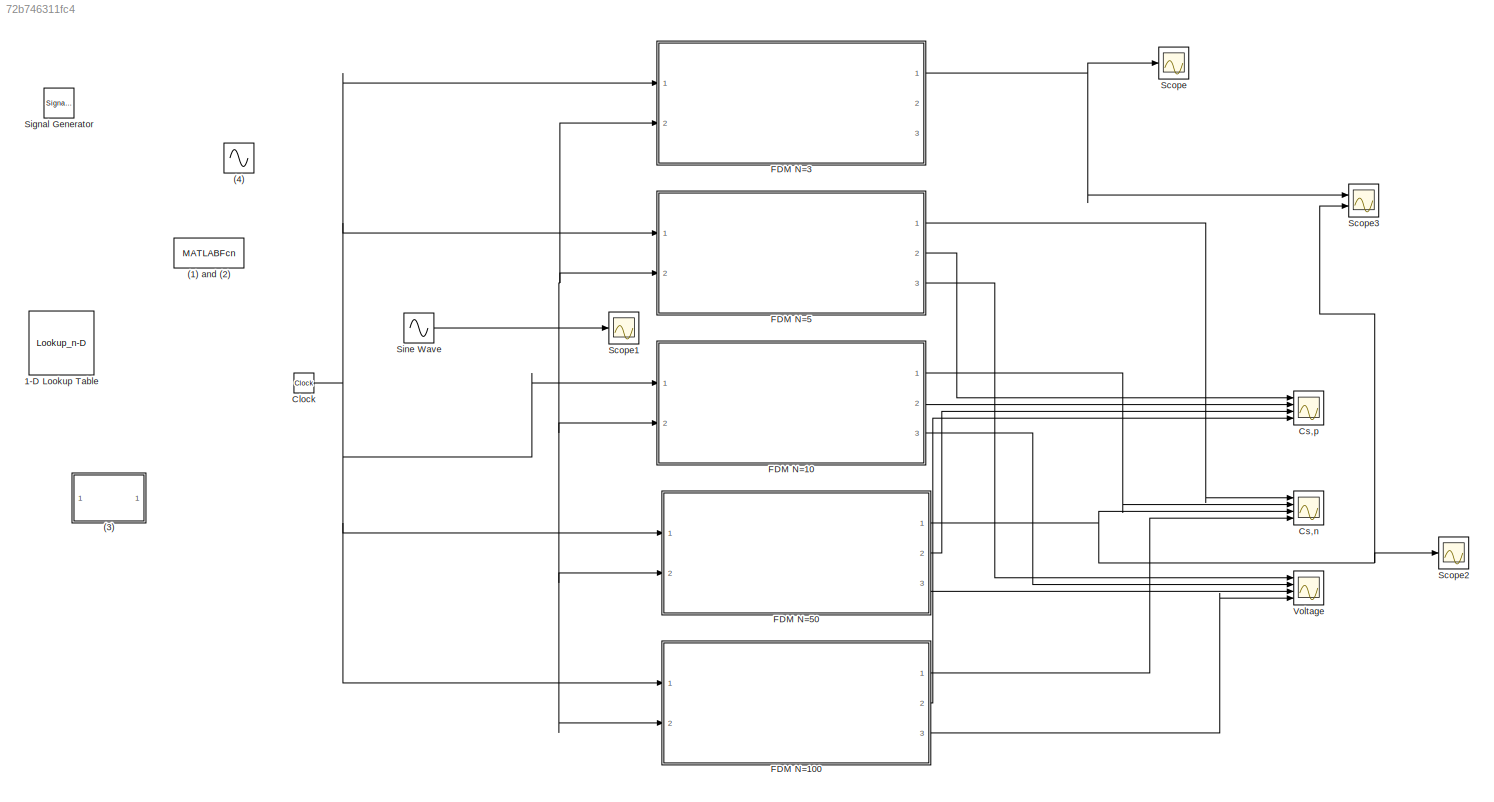
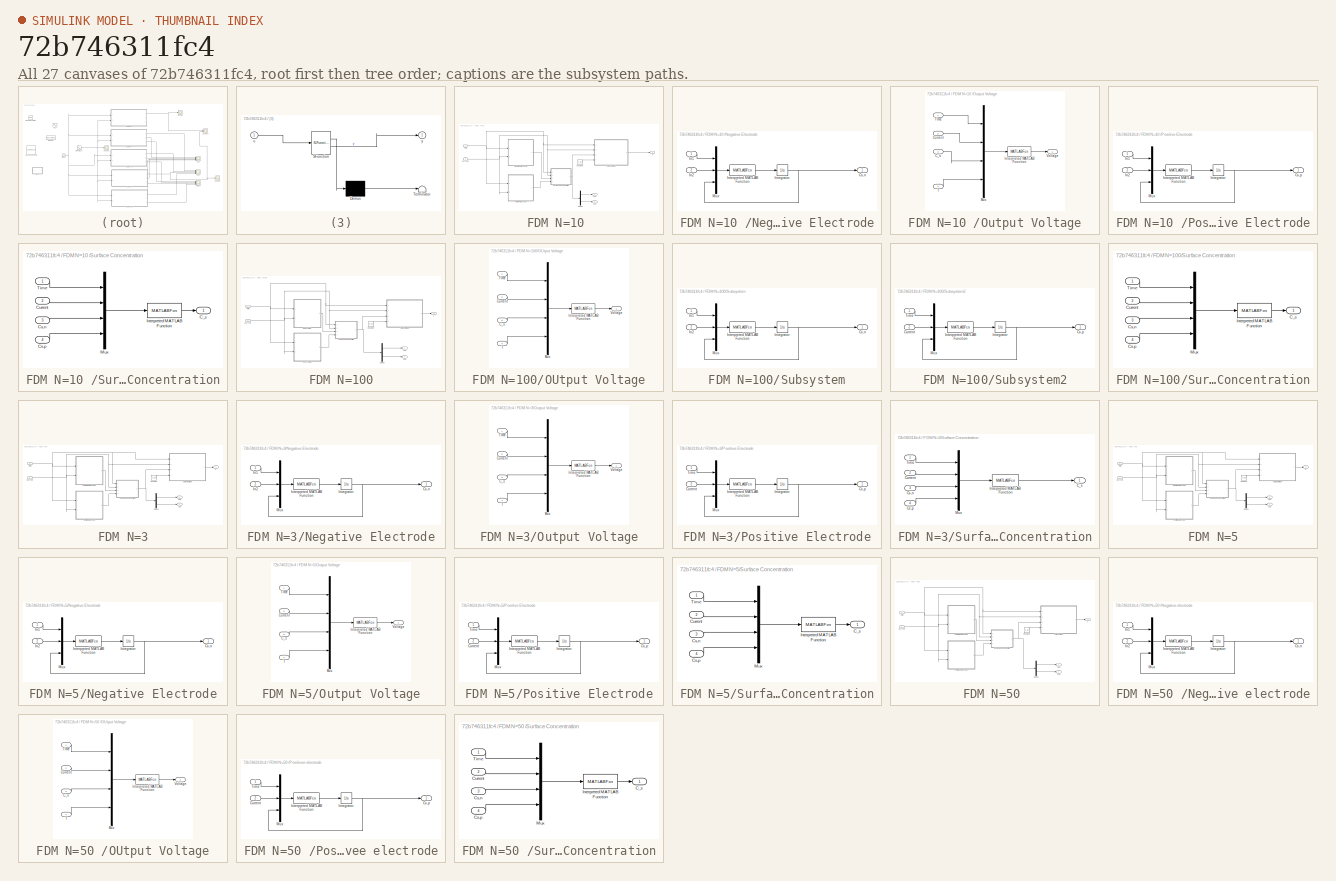
[diagram: thumbnail index - all 27 canvases of the model, root first then tree order]
MODEL slx_72b746311fc4
KIND model
CONFIG AbsTol = auto
CONFIG EnableMultiTasking = off
CONFIG FixedStep = auto
CONFIG MaxStep = 0.1
CONFIG MinStep = auto
CONFIG RelTol = 1e-3
CONFIG SampleTimeConstraint = Unconstrained
CONFIG SolverName = VariableStepAuto
CONFIG StartTime = 0.0
CONFIG StopTime = t_final
BLOCK [MATLABFcn] (1) and (2)
  MATLABFcn = input_c
  Ports = [1, 1]
BLOCK [SubSystem] (3)
  ErrorFcn = Stateflow.Translate.translate
  PermitHierarchicalResolution = ExplicitOnly
  Ports = [1, 1]
  RequestExecContextInheritance = off
  SFBlockType = MATLAB Function
  TreatAsAtomicUnit = on
BLOCK [Demux] (3)/ Demux 
  Outputs = 1
  Ports = [1, 1]
BLOCK [S-Function] (3)/ SFunction 
  EnableBusSupport = on
  FunctionName = sf_sfun
  PortCounts = [1 2]
  Ports = [1, 2]
  SFcnIsStateOwnerBlock = off
  SFunctionDeploymentMode = off
  Tag = Stateflow S-Function 2
BLOCK [Terminator] (3)/ Terminator 
BLOCK [Inport] (3)/u
BLOCK [Outport] (3)/y
BLOCK [Sin] (4)
  Amplitude = 10
  Frequency = 0.005
  Phase = 3*pi/2
  Ports = [0, 1]
  SampleTime = 0
BLOCK [Lookup_n-D] 1-D Lookup Table
  BreakpointsForDimension1 = t
  InputPortMap = u0
  InternalRulePriority = Speed
  NumberOfTableDimensions = 1
  Ports = [1, 1]
  RndMeth = Simplest
  Table = u
BLOCK [Clock] Clock
BLOCK [Scope] Cs,n
  Commented = on
  Floating = off
  NumInputPorts = 4
  Ports = [4]
  ScopeSpecificationString = Simulink.scopes.TimeScopeBlockCfg('CurrentConfiguration', extmgr.ConfigurationSet(extmgr.Configuration('Core','General UI',true),extmgr.Configuration('Core','Source UI',true),extmgr.Configuration('Sources','WiredSimulink',true,'DataLoggingVariableName','csn','DataLogging',true,'DataLoggingSaveFormat','StructureWithTime'),extmgr.Configuration('Visuals','Time Domain',true,'SerializedDisplays',{struc...<+1953ch>
BLOCK [Scope] Cs,p
  Commented = on
  Floating = off
  NumInputPorts = 4
  Ports = [4]
  ScopeSpecificationString = Simulink.scopes.TimeScopeBlockCfg('CurrentConfiguration', extmgr.ConfigurationSet(extmgr.Configuration('Core','General UI',true),extmgr.Configuration('Core','Source UI',true),extmgr.Configuration('Sources','WiredSimulink',true,'DataLogging',true,'DataLoggingVariableName','csp','DataLoggingSaveFormat','StructureWithTime'),extmgr.Configuration('Visuals','Time Domain',true,'SerializedDisplays',{struc...<+1981ch>
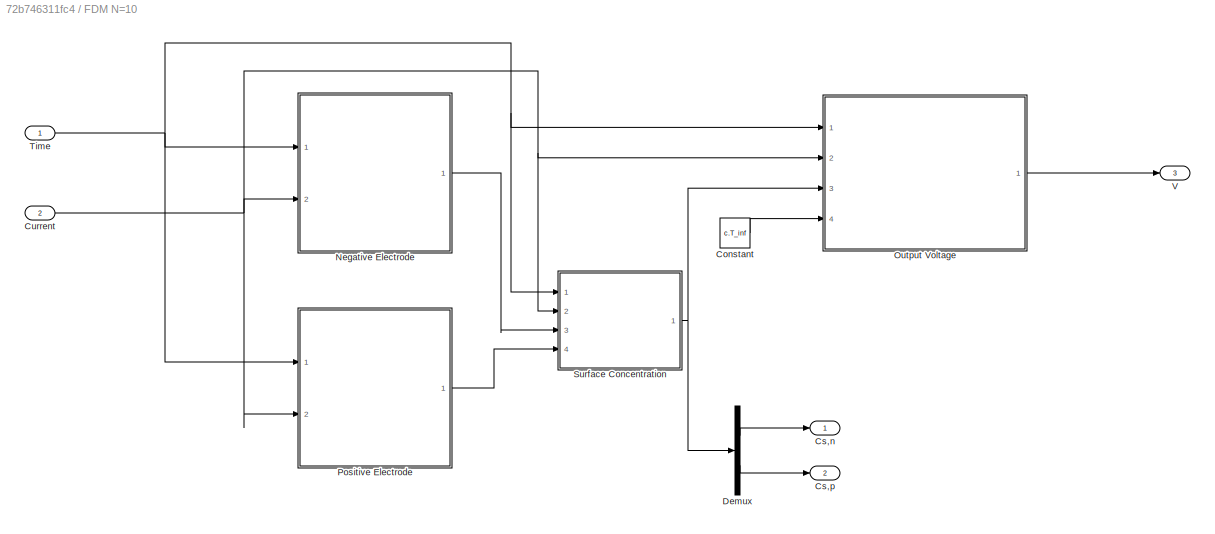
BLOCK [SubSystem] FDM N=10 
  Commented = on
  Ports = [2, 3]
  RequestExecContextInheritance = off
BLOCK [Constant] FDM N=10 /Constant
  Value = c.T_inf
BLOCK [Outport] FDM N=10 /Cs,n
BLOCK [Outport] FDM N=10 /Cs,p
  Port = 2
BLOCK [Inport] FDM N=10 /Current
  Port = 2
BLOCK [Demux] FDM N=10 /Demux
  Outputs = 2
  Ports = [1, 2]
BLOCK [SubSystem] FDM N=10 /Negative Electrode
  Ports = [2, 1]
  RequestExecContextInheritance = off
BLOCK [Outport] FDM N=10 /Negative Electrode/Cs,n
BLOCK [Inport] FDM N=10 /Negative Electrode/In1
BLOCK [Inport] FDM N=10 /Negative Electrode/In2
  Port = 2
BLOCK [Integrator] FDM N=10 /Negative Electrode/Integrator
  InitialCondition = initial_10_n
  Ports = [1, 1]
BLOCK [MATLABFcn] FDM N=10 /Negative Electrode/Interpreted MATLAB Function
  MATLABFcn = state_eqns_fdm_10
  Ports = [1, 1]
BLOCK [Mux] FDM N=10 /Negative Electrode/Mux
  DisplayOption = bar
  Inputs = 3
  Ports = [3, 1]
BLOCK [SubSystem] FDM N=10 /Output Voltage
  Ports = [4, 1]
  RequestExecContextInheritance = off
BLOCK [Inport] FDM N=10 /Output Voltage/C_s
  Port = 3
BLOCK [Inport] FDM N=10 /Output Voltage/Current
  Port = 2
BLOCK [MATLABFcn] FDM N=10 /Output Voltage/Interpreted MATLAB Function
  MATLABFcn = output_V
  Ports = [1, 1]
BLOCK [Mux] FDM N=10 /Output Voltage/Mux
  DisplayOption = bar
  Ports = [4, 1]
BLOCK [Inport] FDM N=10 /Output Voltage/T
  Port = 4
BLOCK [Inport] FDM N=10 /Output Voltage/TIme
BLOCK [Outport] FDM N=10 /Output Voltage/Voltage
BLOCK [SubSystem] FDM N=10 /Positive Electrode
  Ports = [2, 1]
  RequestExecContextInheritance = off
BLOCK [Outport] FDM N=10 /Positive Electrode/Cs,p
BLOCK [Inport] FDM N=10 /Positive Electrode/In1
BLOCK [Inport] FDM N=10 /Positive Electrode/In2
  Port = 2
BLOCK [Integrator] FDM N=10 /Positive Electrode/Integrator
  InitialCondition = initial_10_p
  Ports = [1, 1]
BLOCK [MATLABFcn] FDM N=10 /Positive Electrode/Interpreted MATLAB Function
  MATLABFcn = state_eqns_fdm_10p
  Ports = [1, 1]
BLOCK [Mux] FDM N=10 /Positive Electrode/Mux
  DisplayOption = bar
  Inputs = 3
  Ports = [3, 1]
BLOCK [SubSystem] FDM N=10 /Surface Concentration
  Ports = [4, 1]
  RequestExecContextInheritance = off
BLOCK [Outport] FDM N=10 /Surface Concentration/C_s
BLOCK [Inport] FDM N=10 /Surface Concentration/Cs,n
  Port = 3
BLOCK [Inport] FDM N=10 /Surface Concentration/Cs,p
  Port = 4
BLOCK [Inport] FDM N=10 /Surface Concentration/Current
  Port = 2
BLOCK [MATLABFcn] FDM N=10 /Surface Concentration/Interpreted MATLAB Function
  MATLABFcn = output_C_10
  Ports = [1, 1]
BLOCK [Mux] FDM N=10 /Surface Concentration/Mux
  DisplayOption = bar
  Ports = [4, 1]
BLOCK [Inport] FDM N=10 /Surface Concentration/Time
BLOCK [Inport] FDM N=10 /Time
BLOCK [Outport] FDM N=10 /V
  Port = 3
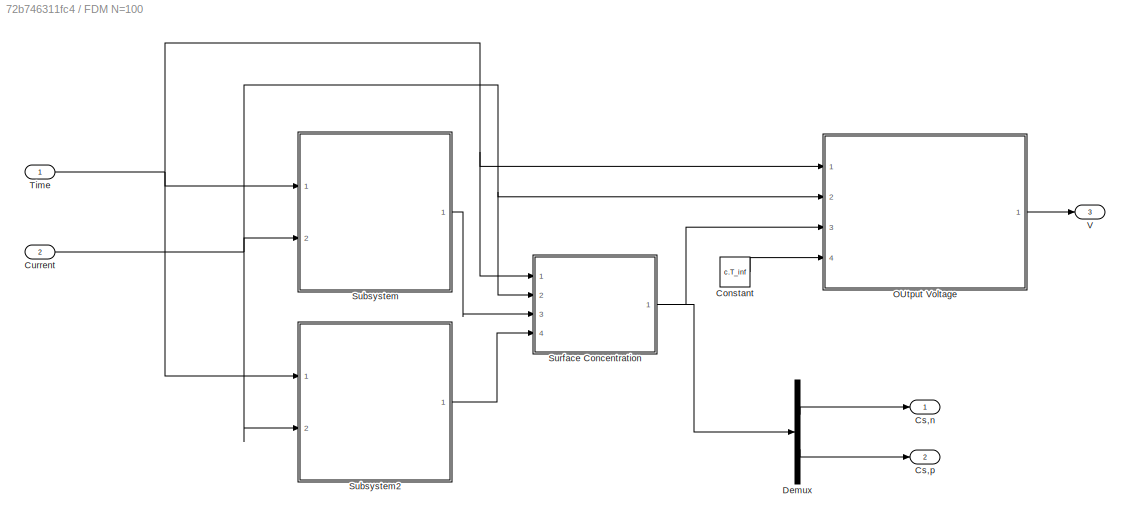
BLOCK [SubSystem] FDM N=100
  Commented = on
  Ports = [2, 3]
  RequestExecContextInheritance = off
BLOCK [Constant] FDM N=100/Constant
  Value = c.T_inf
BLOCK [Outport] FDM N=100/Cs,n
BLOCK [Outport] FDM N=100/Cs,p
  Port = 2
BLOCK [Inport] FDM N=100/Current
  Port = 2
BLOCK [Demux] FDM N=100/Demux
  Outputs = 2
  Ports = [1, 2]
BLOCK [SubSystem] FDM N=100/OUtput Voltage
  Ports = [4, 1]
  RequestExecContextInheritance = off
BLOCK [Inport] FDM N=100/OUtput Voltage/C_s
  Port = 3
BLOCK [Inport] FDM N=100/OUtput Voltage/Current
  Port = 2
BLOCK [MATLABFcn] FDM N=100/OUtput Voltage/Interpreted MATLAB Function
  MATLABFcn = output_V
  Ports = [1, 1]
BLOCK [Mux] FDM N=100/OUtput Voltage/Mux
  DisplayOption = bar
  Ports = [4, 1]
BLOCK [Inport] FDM N=100/OUtput Voltage/T
  Port = 4
BLOCK [Inport] FDM N=100/OUtput Voltage/TIme
BLOCK [Outport] FDM N=100/OUtput Voltage/Voltage
BLOCK [SubSystem] FDM N=100/Subsystem
  Ports = [2, 1]
  RequestExecContextInheritance = off
BLOCK [Outport] FDM N=100/Subsystem/Cs,n
BLOCK [Inport] FDM N=100/Subsystem/In1
BLOCK [Inport] FDM N=100/Subsystem/In2
  Port = 2
BLOCK [Integrator] FDM N=100/Subsystem/Integrator
  InitialCondition = initial_100_n
  Ports = [1, 1]
BLOCK [MATLABFcn] FDM N=100/Subsystem/Interpreted MATLAB Function
  MATLABFcn = state_eqns_fdm_100
  Ports = [1, 1]
BLOCK [Mux] FDM N=100/Subsystem/Mux
  DisplayOption = bar
  Inputs = 3
  Ports = [3, 1]
BLOCK [SubSystem] FDM N=100/Subsystem2
  Ports = [2, 1]
  RequestExecContextInheritance = off
BLOCK [Outport] FDM N=100/Subsystem2/Cs,p
BLOCK [Inport] FDM N=100/Subsystem2/Current
  Port = 2
BLOCK [Integrator] FDM N=100/Subsystem2/Integrator
  InitialCondition = initial_100_p
  Ports = [1, 1]
BLOCK [MATLABFcn] FDM N=100/Subsystem2/Interpreted MATLAB Function
  MATLABFcn = state_eqns_fdm_100p
  Ports = [1, 1]
BLOCK [Mux] FDM N=100/Subsystem2/Mux
  DisplayOption = bar
  Inputs = 3
  Ports = [3, 1]
BLOCK [Inport] FDM N=100/Subsystem2/Time
BLOCK [SubSystem] FDM N=100/Surface Concentration
  Ports = [4, 1]
  RequestExecContextInheritance = off
BLOCK [Outport] FDM N=100/Surface Concentration/C_s
BLOCK [Inport] FDM N=100/Surface Concentration/Cs,n
  Port = 3
BLOCK [Inport] FDM N=100/Surface Concentration/Cs,p
  Port = 4
BLOCK [Inport] FDM N=100/Surface Concentration/Current
  Port = 2
BLOCK [MATLABFcn] FDM N=100/Surface Concentration/Interpreted MATLAB Function
  MATLABFcn = output_C_100
  Ports = [1, 1]
BLOCK [Mux] FDM N=100/Surface Concentration/Mux
  DisplayOption = bar
  Ports = [4, 1]
BLOCK [Inport] FDM N=100/Surface Concentration/Time
BLOCK [Inport] FDM N=100/Time
BLOCK [Outport] FDM N=100/V
  Port = 3
BLOCK [SubSystem] FDM N=3
  Commented = on
  Ports = [2, 3]
  RequestExecContextInheritance = off
BLOCK [Constant] FDM N=3/Constant
  Commented = on
  Value = c.T_inf
BLOCK [Outport] FDM N=3/Cs,n
BLOCK [Outport] FDM N=3/Cs,p
  Port = 2
BLOCK [Inport] FDM N=3/Current
  Port = 2
BLOCK [Demux] FDM N=3/Demux
  Outputs = 2
  Ports = [1, 2]
BLOCK [SubSystem] FDM N=3/Negative Electrode
  Ports = [2, 1]
  RequestExecContextInheritance = off
BLOCK [Outport] FDM N=3/Negative Electrode/Cs,n
BLOCK [Inport] FDM N=3/Negative Electrode/In1
BLOCK [Inport] FDM N=3/Negative Electrode/In2
  Port = 2
BLOCK [Integrator] FDM N=3/Negative Electrode/Integrator
  InitialCondition = initial_3_n
  Ports = [1, 1]
BLOCK [MATLABFcn] FDM N=3/Negative Electrode/Interpreted MATLAB Function
  MATLABFcn = state_eqns_fdm_3
  Ports = [1, 1]
BLOCK [Mux] FDM N=3/Negative Electrode/Mux
  DisplayOption = bar
  Inputs = 3
  Ports = [3, 1]
BLOCK [SubSystem] FDM N=3/Output Voltage
  Ports = [4, 1]
  RequestExecContextInheritance = off
BLOCK [Inport] FDM N=3/Output Voltage/C_s
  Port = 3
BLOCK [Inport] FDM N=3/Output Voltage/Current
  Port = 2
BLOCK [MATLABFcn] FDM N=3/Output Voltage/Interpreted MATLAB Function
  MATLABFcn = output_V
  Ports = [1, 1]
BLOCK [Mux] FDM N=3/Output Voltage/Mux
  DisplayOption = bar
  Ports = [4, 1]
BLOCK [Inport] FDM N=3/Output Voltage/T
  Port = 4
BLOCK [Inport] FDM N=3/Output Voltage/TIme
BLOCK [Outport] FDM N=3/Output Voltage/Voltage
BLOCK [SubSystem] FDM N=3/Positive Electrode
  Ports = [2, 1]
  RequestExecContextInheritance = off
BLOCK [Outport] FDM N=3/Positive Electrode/Cs,p
BLOCK [Inport] FDM N=3/Positive Electrode/Current
  Port = 2
BLOCK [Integrator] FDM N=3/Positive Electrode/Integrator
  InitialCondition = initial_3_p
  Ports = [1, 1]
BLOCK [MATLABFcn] FDM N=3/Positive Electrode/Interpreted MATLAB Function
  MATLABFcn = state_eqns_fdm_3p
  Ports = [1, 1]
BLOCK [Mux] FDM N=3/Positive Electrode/Mux
  DisplayOption = bar
  Inputs = 3
  Ports = [3, 1]
BLOCK [Inport] FDM N=3/Positive Electrode/Time
BLOCK [SubSystem] FDM N=3/Surface Concentration
  Ports = [4, 1]
  RequestExecContextInheritance = off
BLOCK [Outport] FDM N=3/Surface Concentration/C_s
BLOCK [Inport] FDM N=3/Surface Concentration/Cs,n
  Port = 3
BLOCK [Inport] FDM N=3/Surface Concentration/Cs,p
  Port = 4
BLOCK [Inport] FDM N=3/Surface Concentration/Current
  Port = 2
BLOCK [MATLABFcn] FDM N=3/Surface Concentration/Interpreted MATLAB Function
  MATLABFcn = output_C_3
  Ports = [1, 1]
BLOCK [Mux] FDM N=3/Surface Concentration/Mux
  DisplayOption = bar
  Ports = [4, 1]
BLOCK [Inport] FDM N=3/Surface Concentration/Time
BLOCK [Inport] FDM N=3/Time
BLOCK [Outport] FDM N=3/V
  Port = 3
BLOCK [SubSystem] FDM N=5
  Commented = on
  Ports = [2, 3]
  RequestExecContextInheritance = off
BLOCK [Constant] FDM N=5/Constant
  Value = c.T_inf
BLOCK [Outport] FDM N=5/Cs,n
BLOCK [Outport] FDM N=5/Cs,p
  Port = 2
BLOCK [Inport] FDM N=5/Current
  Port = 2
BLOCK [Demux] FDM N=5/Demux
  Outputs = 2
  Ports = [1, 2]
BLOCK [SubSystem] FDM N=5/Negative Electrode
  Ports = [2, 1]
  RequestExecContextInheritance = off
BLOCK [Outport] FDM N=5/Negative Electrode/Cs,n
BLOCK [Inport] FDM N=5/Negative Electrode/In1
BLOCK [Inport] FDM N=5/Negative Electrode/In2
  Port = 2
BLOCK [Integrator] FDM N=5/Negative Electrode/Integrator
  InitialCondition = initial_5_n
  Ports = [1, 1]
BLOCK [MATLABFcn] FDM N=5/Negative Electrode/Interpreted MATLAB Function
  MATLABFcn = state_eqns_fdm_5
  Ports = [1, 1]
BLOCK [Mux] FDM N=5/Negative Electrode/Mux
  DisplayOption = bar
  Inputs = 3
  Ports = [3, 1]
BLOCK [SubSystem] FDM N=5/Output Voltage
  Ports = [4, 1]
  RequestExecContextInheritance = off
BLOCK [Inport] FDM N=5/Output Voltage/C_s
  Port = 3
BLOCK [Inport] FDM N=5/Output Voltage/Current
  Port = 2
BLOCK [MATLABFcn] FDM N=5/Output Voltage/Interpreted MATLAB Function
  MATLABFcn = output_V
  Ports = [1, 1]
BLOCK [Mux] FDM N=5/Output Voltage/Mux
  DisplayOption = bar
  Ports = [4, 1]
BLOCK [Inport] FDM N=5/Output Voltage/T
  Port = 4
BLOCK [Inport] FDM N=5/Output Voltage/TIme
BLOCK [Outport] FDM N=5/Output Voltage/Voltage
BLOCK [SubSystem] FDM N=5/Positive Electrode
  Ports = [2, 1]
  RequestExecContextInheritance = off
BLOCK [Outport] FDM N=5/Positive Electrode/Cs,p
BLOCK [Inport] FDM N=5/Positive Electrode/Current
  Port = 2
BLOCK [Integrator] FDM N=5/Positive Electrode/Integrator
  InitialCondition = initial_5_p
  Ports = [1, 1]
BLOCK [MATLABFcn] FDM N=5/Positive Electrode/Interpreted MATLAB Function
  MATLABFcn = state_eqns_fdm_5p
  Ports = [1, 1]
BLOCK [Mux] FDM N=5/Positive Electrode/Mux
  DisplayOption = bar
  Inputs = 3
  Ports = [3, 1]
BLOCK [Inport] FDM N=5/Positive Electrode/Time
BLOCK [SubSystem] FDM N=5/Surface Concentration
  Ports = [4, 1]
  RequestExecContextInheritance = off
BLOCK [Outport] FDM N=5/Surface Concentration/C_s
BLOCK [Inport] FDM N=5/Surface Concentration/Cs,n
  Port = 3
BLOCK [Inport] FDM N=5/Surface Concentration/Cs,p
  Port = 4
BLOCK [Inport] FDM N=5/Surface Concentration/Current
  Port = 2
BLOCK [MATLABFcn] FDM N=5/Surface Concentration/Interpreted MATLAB Function
  MATLABFcn = output_C_5
  Ports = [1, 1]
BLOCK [Mux] FDM N=5/Surface Concentration/Mux
  DisplayOption = bar
  Ports = [4, 1]
BLOCK [Inport] FDM N=5/Surface Concentration/Time
BLOCK [Inport] FDM N=5/Time
BLOCK [Outport] FDM N=5/V
  Port = 3
BLOCK [SubSystem] FDM N=50 
  Ports = [2, 3]
  RequestExecContextInheritance = off
BLOCK [Constant] FDM N=50 /Constant
  Value = c.T_inf
BLOCK [Outport] FDM N=50 /Cs,n
BLOCK [Outport] FDM N=50 /Cs,p
  Port = 2
BLOCK [Inport] FDM N=50 /Current
  Port = 2
BLOCK [Demux] FDM N=50 /Demux
  Outputs = 2
  Ports = [1, 2]
BLOCK [SubSystem] FDM N=50 /Negative electrode
  Ports = [2, 1]
  RequestExecContextInheritance = off
BLOCK [Outport] FDM N=50 /Negative electrode/Cs,n
BLOCK [Inport] FDM N=50 /Negative electrode/In1
BLOCK [Inport] FDM N=50 /Negative electrode/In2
  Port = 2
BLOCK [Integrator] FDM N=50 /Negative electrode/Integrator
  InitialCondition = initial_50_n
  Ports = [1, 1]
BLOCK [MATLABFcn] FDM N=50 /Negative electrode/Interpreted MATLAB Function
  MATLABFcn = state_eqns_fdm_50
  Ports = [1, 1]
BLOCK [Mux] FDM N=50 /Negative electrode/Mux
  DisplayOption = bar
  Inputs = 3
  Ports = [3, 1]
BLOCK [SubSystem] FDM N=50 /OUtput Voltage
  Ports = [4, 1]
  RequestExecContextInheritance = off
BLOCK [Inport] FDM N=50 /OUtput Voltage/C_s
  Port = 3
BLOCK [Inport] FDM N=50 /OUtput Voltage/Current
  Port = 2
BLOCK [MATLABFcn] FDM N=50 /OUtput Voltage/Interpreted MATLAB Function
  MATLABFcn = output_V
  Ports = [1, 1]
BLOCK [Mux] FDM N=50 /OUtput Voltage/Mux
  DisplayOption = bar
  Ports = [4, 1]
BLOCK [Inport] FDM N=50 /OUtput Voltage/T
  Port = 4
BLOCK [Inport] FDM N=50 /OUtput Voltage/TIme
BLOCK [Outport] FDM N=50 /OUtput Voltage/Voltage
BLOCK [SubSystem] FDM N=50 /Positivee electrode
  Ports = [2, 1]
  RequestExecContextInheritance = off
BLOCK [Outport] FDM N=50 /Positivee electrode/Cs,p
BLOCK [Inport] FDM N=50 /Positivee electrode/Current
  Port = 2
BLOCK [Integrator] FDM N=50 /Positivee electrode/Integrator
  InitialCondition = initial_50_p
  Ports = [1, 1]
BLOCK [MATLABFcn] FDM N=50 /Positivee electrode/Interpreted MATLAB Function
  MATLABFcn = state_eqns_fdm_50p
  Ports = [1, 1]
BLOCK [Mux] FDM N=50 /Positivee electrode/Mux
  DisplayOption = bar
  Inputs = 3
  Ports = [3, 1]
BLOCK [Inport] FDM N=50 /Positivee electrode/Time
BLOCK [SubSystem] FDM N=50 /Surface Concentration
  Ports = [4, 1]
  RequestExecContextInheritance = off
BLOCK [Outport] FDM N=50 /Surface Concentration/C_s
BLOCK [Inport] FDM N=50 /Surface Concentration/Cs,n
  Port = 3
BLOCK [Inport] FDM N=50 /Surface Concentration/Cs,p
  Port = 4
BLOCK [Inport] FDM N=50 /Surface Concentration/Current
  Port = 2
BLOCK [MATLABFcn] FDM N=50 /Surface Concentration/Interpreted MATLAB Function
  MATLABFcn = output_C_50
  Ports = [1, 1]
BLOCK [Mux] FDM N=50 /Surface Concentration/Mux
  DisplayOption = bar
  Ports = [4, 1]
BLOCK [Inport] FDM N=50 /Surface Concentration/Time
BLOCK [Inport] FDM N=50 /Time
BLOCK [Outport] FDM N=50 /V
  Port = 3
BLOCK [Scope] Scope
  Commented = on
  Floating = off
  NumInputPorts = 1
  Ports = [1]
  ScopeSpecificationString = Simulink.scopes.TimeScopeBlockCfg('CurrentConfiguration', extmgr.ConfigurationSet(extmgr.Configuration('Core','General UI',true),extmgr.Configuration('Core','Source UI',true),extmgr.Configuration('Sources','WiredSimulink',true,'DataLoggingVariableName','csn','DataLogging',true,'DataLoggingSaveFormat','StructureWithTime'),extmgr.Configuration('Visuals','Time Domain',true,'SerializedDisplays',{struc...<+1570ch>
BLOCK [Scope] Scope1
  Floating = off
  NumInputPorts = 1
  Ports = [1]
  ScopeSpecificationString = Simulink.scopes.TimeScopeBlockCfg('CurrentConfiguration', extmgr.ConfigurationSet(extmgr.Configuration('Core','General UI',true),extmgr.Configuration('Core','Source UI',true),extmgr.Configuration('Sources','WiredSimulink',true,'DataLoggingVariableName','I','DataLogging',true,'DataLoggingSaveFormat','StructureWithTime'),extmgr.Configuration('Visuals','Time Domain',true,'SerializedDisplays',{struct(...<+1476ch>
BLOCK [Scope] Scope2
  Floating = off
  NumInputPorts = 1
  Ports = [1]
  ScopeSpecificationString = Simulink.scopes.TimeScopeBlockCfg('CurrentConfiguration', extmgr.ConfigurationSet(extmgr.Configuration('Core','General UI',true),extmgr.Configuration('Core','Source UI',true),extmgr.Configuration('Sources','WiredSimulink',true,'DataLoggingVariableName','csn','DataLogging',true,'DataLoggingSaveFormat','StructureWithTime'),extmgr.Configuration('Visuals','Time Domain',true,'SerializedDisplays',{struc...<+1523ch>
BLOCK [Scope] Scope3
  Floating = off
  NumInputPorts = 2
  Ports = [2]
  ScopeSpecificationString = Simulink.scopes.TimeScopeBlockCfg('CurrentConfiguration', extmgr.ConfigurationSet(extmgr.Configuration('Core','General UI',true),extmgr.Configuration('Core','Source UI',true),extmgr.Configuration('Sources','WiredSimulink',true,'DataLoggingVariableName','ScopeData1'),extmgr.Configuration('Visuals','Time Domain',true,'SerializedDisplays',{struct('MinYLimReal','-0.0018','MaxYLimReal','0.01618','YLabe...<+1687ch>
BLOCK [SignalGenerator] Signal Generator
  Amplitude = -4
  Frequency = 0.006
  Ports = [0, 1]
  Units = rad/sec
  WaveForm = square
BLOCK [Sin] Sine Wave
  Amplitude = 10
  Frequency = 0.005
  Ports = [0, 1]
  SampleTime = 0
BLOCK [Scope] Voltage
  Commented = on
  Floating = off
  NumInputPorts = 4
  Ports = [4]
  ScopeSpecificationString = Simulink.scopes.TimeScopeBlockCfg('CurrentConfiguration', extmgr.ConfigurationSet(extmgr.Configuration('Core','General UI',true),extmgr.Configuration('Core','Source UI',true),extmgr.Configuration('Sources','WiredSimulink',true,'DataLoggingVariableName','V','DataLogging',true,'DataLoggingSaveFormat','StructureWithTime'),extmgr.Configuration('Visuals','Time Domain',true,'SerializedDisplays',{struct(...<+2080ch>
NET Clock:1 -> FDM N=10 :1, FDM N=100:1, FDM N=3:1, FDM N=50 :1, FDM N=5:1
LINE FDM N=10 /Constant:1 -> FDM N=10 /Output Voltage:4
NET FDM N=10 /Current:1 -> FDM N=10 /Negative Electrode:2, FDM N=10 /Output Voltage:2, FDM N=10 /Positive Electrode:2, FDM N=10 /Surface Concentration:2
LINE FDM N=10 /Demux:1 -> FDM N=10 /Cs,n:1
LINE FDM N=10 /Demux:2 -> FDM N=10 /Cs,p:1
LINE FDM N=10 /Negative Electrode/In1:1 -> FDM N=10 /Negative Electrode/Mux:1
LINE FDM N=10 /Negative Electrode/In2:1 -> FDM N=10 /Negative Electrode/Mux:2
NET FDM N=10 /Negative Electrode/Integrator:1 -> FDM N=10 /Negative Electrode/Cs,n:1, FDM N=10 /Negative Electrode/Mux:3
LINE FDM N=10 /Negative Electrode/Interpreted MATLAB Function:1 -> FDM N=10 /Negative Electrode/Integrator:1
LINE FDM N=10 /Negative Electrode/Mux:1 -> FDM N=10 /Negative Electrode/Interpreted MATLAB Function:1
LINE FDM N=10 /Negative Electrode:1 -> FDM N=10 /Surface Concentration:3
LINE FDM N=10 /Output Voltage/C_s:1 -> FDM N=10 /Output Voltage/Mux:3
LINE FDM N=10 /Output Voltage/Current:1 -> FDM N=10 /Output Voltage/Mux:2
LINE FDM N=10 /Output Voltage/Interpreted MATLAB Function:1 -> FDM N=10 /Output Voltage/Voltage:1
LINE FDM N=10 /Output Voltage/Mux:1 -> FDM N=10 /Output Voltage/Interpreted MATLAB Function:1
LINE FDM N=10 /Output Voltage/T:1 -> FDM N=10 /Output Voltage/Mux:4
LINE FDM N=10 /Output Voltage/TIme:1 -> FDM N=10 /Output Voltage/Mux:1
LINE FDM N=10 /Output Voltage:1 -> FDM N=10 /V:1
LINE FDM N=10 /Positive Electrode/In1:1 -> FDM N=10 /Positive Electrode/Mux:1
LINE FDM N=10 /Positive Electrode/In2:1 -> FDM N=10 /Positive Electrode/Mux:2
NET FDM N=10 /Positive Electrode/Integrator:1 -> FDM N=10 /Positive Electrode/Cs,p:1, FDM N=10 /Positive Electrode/Mux:3
LINE FDM N=10 /Positive Electrode/Interpreted MATLAB Function:1 -> FDM N=10 /Positive Electrode/Integrator:1
LINE FDM N=10 /Positive Electrode/Mux:1 -> FDM N=10 /Positive Electrode/Interpreted MATLAB Function:1
LINE FDM N=10 /Positive Electrode:1 -> FDM N=10 /Surface Concentration:4
LINE FDM N=10 /Surface Concentration/Cs,n:1 -> FDM N=10 /Surface Concentration/Mux:3
LINE FDM N=10 /Surface Concentration/Cs,p:1 -> FDM N=10 /Surface Concentration/Mux:4
LINE FDM N=10 /Surface Concentration/Current:1 -> FDM N=10 /Surface Concentration/Mux:2
LINE FDM N=10 /Surface Concentration/Interpreted MATLAB Function:1 -> FDM N=10 /Surface Concentration/C_s:1
LINE FDM N=10 /Surface Concentration/Mux:1 -> FDM N=10 /Surface Concentration/Interpreted MATLAB Function:1
LINE FDM N=10 /Surface Concentration/Time:1 -> FDM N=10 /Surface Concentration/Mux:1
NET FDM N=10 /Surface Concentration:1 -> FDM N=10 /Demux:1, FDM N=10 /Output Voltage:3
NET FDM N=10 /Time:1 -> FDM N=10 /Negative Electrode:1, FDM N=10 /Output Voltage:1, FDM N=10 /Positive Electrode:1, FDM N=10 /Surface Concentration:1
LINE FDM N=10 :1 -> Cs,n:2
LINE FDM N=10 :2 -> Cs,p:2
LINE FDM N=10 :3 -> Voltage:2
LINE FDM N=100/Constant:1 -> FDM N=100/OUtput Voltage:4
NET FDM N=100/Current:1 -> FDM N=100/OUtput Voltage:2, FDM N=100/Subsystem2:2, FDM N=100/Subsystem:2, FDM N=100/Surface Concentration:2
LINE FDM N=100/Demux:1 -> FDM N=100/Cs,n:1
LINE FDM N=100/Demux:2 -> FDM N=100/Cs,p:1
LINE FDM N=100/OUtput Voltage/C_s:1 -> FDM N=100/OUtput Voltage/Mux:3
LINE FDM N=100/OUtput Voltage/Current:1 -> FDM N=100/OUtput Voltage/Mux:2
LINE FDM N=100/OUtput Voltage/Interpreted MATLAB Function:1 -> FDM N=100/OUtput Voltage/Voltage:1
LINE FDM N=100/OUtput Voltage/Mux:1 -> FDM N=100/OUtput Voltage/Interpreted MATLAB Function:1
LINE FDM N=100/OUtput Voltage/T:1 -> FDM N=100/OUtput Voltage/Mux:4
LINE FDM N=100/OUtput Voltage/TIme:1 -> FDM N=100/OUtput Voltage/Mux:1
LINE FDM N=100/OUtput Voltage:1 -> FDM N=100/V:1
LINE FDM N=100/Subsystem/In1:1 -> FDM N=100/Subsystem/Mux:1
LINE FDM N=100/Subsystem/In2:1 -> FDM N=100/Subsystem/Mux:2
NET FDM N=100/Subsystem/Integrator:1 -> FDM N=100/Subsystem/Cs,n:1, FDM N=100/Subsystem/Mux:3
LINE FDM N=100/Subsystem/Interpreted MATLAB Function:1 -> FDM N=100/Subsystem/Integrator:1
LINE FDM N=100/Subsystem/Mux:1 -> FDM N=100/Subsystem/Interpreted MATLAB Function:1
LINE FDM N=100/Subsystem2/Current:1 -> FDM N=100/Subsystem2/Mux:2
NET FDM N=100/Subsystem2/Integrator:1 -> FDM N=100/Subsystem2/Cs,p:1, FDM N=100/Subsystem2/Mux:3
LINE FDM N=100/Subsystem2/Interpreted MATLAB Function:1 -> FDM N=100/Subsystem2/Integrator:1
LINE FDM N=100/Subsystem2/Mux:1 -> FDM N=100/Subsystem2/Interpreted MATLAB Function:1
LINE FDM N=100/Subsystem2/Time:1 -> FDM N=100/Subsystem2/Mux:1
LINE FDM N=100/Subsystem2:1 -> FDM N=100/Surface Concentration:4
LINE FDM N=100/Subsystem:1 -> FDM N=100/Surface Concentration:3
LINE FDM N=100/Surface Concentration/Cs,n:1 -> FDM N=100/Surface Concentration/Mux:3
LINE FDM N=100/Surface Concentration/Cs,p:1 -> FDM N=100/Surface Concentration/Mux:4
LINE FDM N=100/Surface Concentration/Current:1 -> FDM N=100/Surface Concentration/Mux:2
LINE FDM N=100/Surface Concentration/Interpreted MATLAB Function:1 -> FDM N=100/Surface Concentration/C_s:1
LINE FDM N=100/Surface Concentration/Mux:1 -> FDM N=100/Surface Concentration/Interpreted MATLAB Function:1
LINE FDM N=100/Surface Concentration/Time:1 -> FDM N=100/Surface Concentration/Mux:1
NET FDM N=100/Surface Concentration:1 -> FDM N=100/Demux:1, FDM N=100/OUtput Voltage:3
NET FDM N=100/Time:1 -> FDM N=100/OUtput Voltage:1, FDM N=100/Subsystem2:1, FDM N=100/Subsystem:1, FDM N=100/Surface Concentration:1
LINE FDM N=100:1 -> Cs,n:4
LINE FDM N=100:2 -> Cs,p:4
LINE FDM N=100:3 -> Voltage:4
LINE FDM N=3/Constant:1 -> FDM N=3/Output Voltage:4
NET FDM N=3/Current:1 -> FDM N=3/Negative Electrode:2, FDM N=3/Output Voltage:2, FDM N=3/Positive Electrode:2, FDM N=3/Surface Concentration:2
LINE FDM N=3/Demux:1 -> FDM N=3/Cs,n:1
LINE FDM N=3/Demux:2 -> FDM N=3/Cs,p:1
LINE FDM N=3/Negative Electrode/In1:1 -> FDM N=3/Negative Electrode/Mux:1
LINE FDM N=3/Negative Electrode/In2:1 -> FDM N=3/Negative Electrode/Mux:2
NET FDM N=3/Negative Electrode/Integrator:1 -> FDM N=3/Negative Electrode/Cs,n:1, FDM N=3/Negative Electrode/Mux:3
LINE FDM N=3/Negative Electrode/Interpreted MATLAB Function:1 -> FDM N=3/Negative Electrode/Integrator:1
LINE FDM N=3/Negative Electrode/Mux:1 -> FDM N=3/Negative Electrode/Interpreted MATLAB Function:1
LINE FDM N=3/Negative Electrode:1 -> FDM N=3/Surface Concentration:3
LINE FDM N=3/Output Voltage/C_s:1 -> FDM N=3/Output Voltage/Mux:3
LINE FDM N=3/Output Voltage/Current:1 -> FDM N=3/Output Voltage/Mux:2
LINE FDM N=3/Output Voltage/Interpreted MATLAB Function:1 -> FDM N=3/Output Voltage/Voltage:1
LINE FDM N=3/Output Voltage/Mux:1 -> FDM N=3/Output Voltage/Interpreted MATLAB Function:1
LINE FDM N=3/Output Voltage/T:1 -> FDM N=3/Output Voltage/Mux:4
LINE FDM N=3/Output Voltage/TIme:1 -> FDM N=3/Output Voltage/Mux:1
LINE FDM N=3/Output Voltage:1 -> FDM N=3/V:1
LINE FDM N=3/Positive Electrode/Current:1 -> FDM N=3/Positive Electrode/Mux:2
NET FDM N=3/Positive Electrode/Integrator:1 -> FDM N=3/Positive Electrode/Cs,p:1, FDM N=3/Positive Electrode/Mux:3
LINE FDM N=3/Positive Electrode/Interpreted MATLAB Function:1 -> FDM N=3/Positive Electrode/Integrator:1
LINE FDM N=3/Positive Electrode/Mux:1 -> FDM N=3/Positive Electrode/Interpreted MATLAB Function:1
LINE FDM N=3/Positive Electrode/Time:1 -> FDM N=3/Positive Electrode/Mux:1
LINE FDM N=3/Positive Electrode:1 -> FDM N=3/Surface Concentration:4
LINE FDM N=3/Surface Concentration/Cs,n:1 -> FDM N=3/Surface Concentration/Mux:3
LINE FDM N=3/Surface Concentration/Cs,p:1 -> FDM N=3/Surface Concentration/Mux:4
LINE FDM N=3/Surface Concentration/Current:1 -> FDM N=3/Surface Concentration/Mux:2
LINE FDM N=3/Surface Concentration/Interpreted MATLAB Function:1 -> FDM N=3/Surface Concentration/C_s:1
LINE FDM N=3/Surface Concentration/Mux:1 -> FDM N=3/Surface Concentration/Interpreted MATLAB Function:1
LINE FDM N=3/Surface Concentration/Time:1 -> FDM N=3/Surface Concentration/Mux:1
NET FDM N=3/Surface Concentration:1 -> FDM N=3/Demux:1, FDM N=3/Output Voltage:3
NET FDM N=3/Time:1 -> FDM N=3/Negative Electrode:1, FDM N=3/Output Voltage:1, FDM N=3/Positive Electrode:1, FDM N=3/Surface Concentration:1
NET FDM N=3:1 -> Scope3:1, Scope:1
LINE FDM N=5/Constant:1 -> FDM N=5/Output Voltage:4
NET FDM N=5/Current:1 -> FDM N=5/Negative Electrode:2, FDM N=5/Output Voltage:2, FDM N=5/Positive Electrode:2, FDM N=5/Surface Concentration:2
LINE FDM N=5/Demux:1 -> FDM N=5/Cs,n:1
LINE FDM N=5/Demux:2 -> FDM N=5/Cs,p:1
LINE FDM N=5/Negative Electrode/In1:1 -> FDM N=5/Negative Electrode/Mux:1
LINE FDM N=5/Negative Electrode/In2:1 -> FDM N=5/Negative Electrode/Mux:2
NET FDM N=5/Negative Electrode/Integrator:1 -> FDM N=5/Negative Electrode/Cs,n:1, FDM N=5/Negative Electrode/Mux:3
LINE FDM N=5/Negative Electrode/Interpreted MATLAB Function:1 -> FDM N=5/Negative Electrode/Integrator:1
LINE FDM N=5/Negative Electrode/Mux:1 -> FDM N=5/Negative Electrode/Interpreted MATLAB Function:1
LINE FDM N=5/Negative Electrode:1 -> FDM N=5/Surface Concentration:3
LINE FDM N=5/Output Voltage/C_s:1 -> FDM N=5/Output Voltage/Mux:3
LINE FDM N=5/Output Voltage/Current:1 -> FDM N=5/Output Voltage/Mux:2
LINE FDM N=5/Output Voltage/Interpreted MATLAB Function:1 -> FDM N=5/Output Voltage/Voltage:1
LINE FDM N=5/Output Voltage/Mux:1 -> FDM N=5/Output Voltage/Interpreted MATLAB Function:1
LINE FDM N=5/Output Voltage/T:1 -> FDM N=5/Output Voltage/Mux:4
LINE FDM N=5/Output Voltage/TIme:1 -> FDM N=5/Output Voltage/Mux:1
LINE FDM N=5/Output Voltage:1 -> FDM N=5/V:1
LINE FDM N=5/Positive Electrode/Current:1 -> FDM N=5/Positive Electrode/Mux:2
NET FDM N=5/Positive Electrode/Integrator:1 -> FDM N=5/Positive Electrode/Cs,p:1, FDM N=5/Positive Electrode/Mux:3
LINE FDM N=5/Positive Electrode/Interpreted MATLAB Function:1 -> FDM N=5/Positive Electrode/Integrator:1
LINE FDM N=5/Positive Electrode/Mux:1 -> FDM N=5/Positive Electrode/Interpreted MATLAB Function:1
LINE FDM N=5/Positive Electrode/Time:1 -> FDM N=5/Positive Electrode/Mux:1
LINE FDM N=5/Positive Electrode:1 -> FDM N=5/Surface Concentration:4
LINE FDM N=5/Surface Concentration/Cs,n:1 -> FDM N=5/Surface Concentration/Mux:3
LINE FDM N=5/Surface Concentration/Cs,p:1 -> FDM N=5/Surface Concentration/Mux:4
LINE FDM N=5/Surface Concentration/Current:1 -> FDM N=5/Surface Concentration/Mux:2
LINE FDM N=5/Surface Concentration/Interpreted MATLAB Function:1 -> FDM N=5/Surface Concentration/C_s:1
LINE FDM N=5/Surface Concentration/Mux:1 -> FDM N=5/Surface Concentration/Interpreted MATLAB Function:1
LINE FDM N=5/Surface Concentration/Time:1 -> FDM N=5/Surface Concentration/Mux:1
NET FDM N=5/Surface Concentration:1 -> FDM N=5/Demux:1, FDM N=5/Output Voltage:3
NET FDM N=5/Time:1 -> FDM N=5/Negative Electrode:1, FDM N=5/Output Voltage:1, FDM N=5/Positive Electrode:1, FDM N=5/Surface Concentration:1
LINE FDM N=50 /Constant:1 -> FDM N=50 /OUtput Voltage:4
NET FDM N=50 /Current:1 -> FDM N=50 /Negative electrode:2, FDM N=50 /OUtput Voltage:2, FDM N=50 /Positivee electrode:2, FDM N=50 /Surface Concentration:2
LINE FDM N=50 /Demux:1 -> FDM N=50 /Cs,n:1
LINE FDM N=50 /Demux:2 -> FDM N=50 /Cs,p:1
LINE FDM N=50 /Negative electrode/In1:1 -> FDM N=50 /Negative electrode/Mux:1
LINE FDM N=50 /Negative electrode/In2:1 -> FDM N=50 /Negative electrode/Mux:2
NET FDM N=50 /Negative electrode/Integrator:1 -> FDM N=50 /Negative electrode/Cs,n:1, FDM N=50 /Negative electrode/Mux:3
LINE FDM N=50 /Negative electrode/Interpreted MATLAB Function:1 -> FDM N=50 /Negative electrode/Integrator:1
LINE FDM N=50 /Negative electrode/Mux:1 -> FDM N=50 /Negative electrode/Interpreted MATLAB Function:1
LINE FDM N=50 /Negative electrode:1 -> FDM N=50 /Surface Concentration:3
LINE FDM N=50 /OUtput Voltage/C_s:1 -> FDM N=50 /OUtput Voltage/Mux:3
LINE FDM N=50 /OUtput Voltage/Current:1 -> FDM N=50 /OUtput Voltage/Mux:2
LINE FDM N=50 /OUtput Voltage/Interpreted MATLAB Function:1 -> FDM N=50 /OUtput Voltage/Voltage:1
LINE FDM N=50 /OUtput Voltage/Mux:1 -> FDM N=50 /OUtput Voltage/Interpreted MATLAB Function:1
LINE FDM N=50 /OUtput Voltage/T:1 -> FDM N=50 /OUtput Voltage/Mux:4
LINE FDM N=50 /OUtput Voltage/TIme:1 -> FDM N=50 /OUtput Voltage/Mux:1
LINE FDM N=50 /OUtput Voltage:1 -> FDM N=50 /V:1
LINE FDM N=50 /Positivee electrode/Current:1 -> FDM N=50 /Positivee electrode/Mux:2
NET FDM N=50 /Positivee electrode/Integrator:1 -> FDM N=50 /Positivee electrode/Cs,p:1, FDM N=50 /Positivee electrode/Mux:3
LINE FDM N=50 /Positivee electrode/Interpreted MATLAB Function:1 -> FDM N=50 /Positivee electrode/Integrator:1
LINE FDM N=50 /Positivee electrode/Mux:1 -> FDM N=50 /Positivee electrode/Interpreted MATLAB Function:1
LINE FDM N=50 /Positivee electrode/Time:1 -> FDM N=50 /Positivee electrode/Mux:1
LINE FDM N=50 /Positivee electrode:1 -> FDM N=50 /Surface Concentration:4
LINE FDM N=50 /Surface Concentration/Cs,n:1 -> FDM N=50 /Surface Concentration/Mux:3
LINE FDM N=50 /Surface Concentration/Cs,p:1 -> FDM N=50 /Surface Concentration/Mux:4
LINE FDM N=50 /Surface Concentration/Current:1 -> FDM N=50 /Surface Concentration/Mux:2
LINE FDM N=50 /Surface Concentration/Interpreted MATLAB Function:1 -> FDM N=50 /Surface Concentration/C_s:1
LINE FDM N=50 /Surface Concentration/Mux:1 -> FDM N=50 /Surface Concentration/Interpreted MATLAB Function:1
LINE FDM N=50 /Surface Concentration/Time:1 -> FDM N=50 /Surface Concentration/Mux:1
NET FDM N=50 /Surface Concentration:1 -> FDM N=50 /Demux:1, FDM N=50 /OUtput Voltage:3
NET FDM N=50 /Time:1 -> FDM N=50 /Negative electrode:1, FDM N=50 /OUtput Voltage:1, FDM N=50 /Positivee electrode:1, FDM N=50 /Surface Concentration:1
NET FDM N=50 :1 -> Cs,n:3, Scope2:1, Scope3:2
LINE FDM N=50 :2 -> Cs,p:3
LINE FDM N=50 :3 -> Voltage:3
LINE FDM N=5:1 -> Cs,n:1
LINE FDM N=5:2 -> Cs,p:1
LINE FDM N=5:3 -> Voltage:1
NET Sine Wave:1 -> FDM N=10 :2, FDM N=100:2, FDM N=3:2, FDM N=50 :2, FDM N=5:2, Scope1:1
note: NET lines group one-source signal fan-out (src -> all destinations, sorted); 1:1 wires keep LINE
CHART (3) states=1 transitions=1
  STATE_LABEL 'eML_blk_kernel()'
  STATE_LABEL 'SCRIPT:\nfunction y = fcn(u)\n\ny = exp(-0.0055*u).*10.*sin(0.02*pi*u);\n\n'
CHART  states=0 transitions=0
